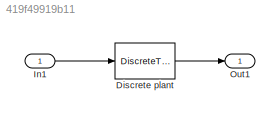
MODEL slx_419f49919b11
KIND model
BLOCK [DiscreteTransferFcn] Discrete plant
  Denominator = tf(Gd).den{1}
  InputPortMap = u0
  Numerator = tf(Gd).num{1}
  Ports = [1, 1]
  SampleTime = Ts
BLOCK [Inport] In1
  IconDisplay = Port number
BLOCK [Outport] Out1
  IconDisplay = Port number
LINE Discrete plant:1 -> Out1:1
LINE In1:1 -> Discrete plant:1
